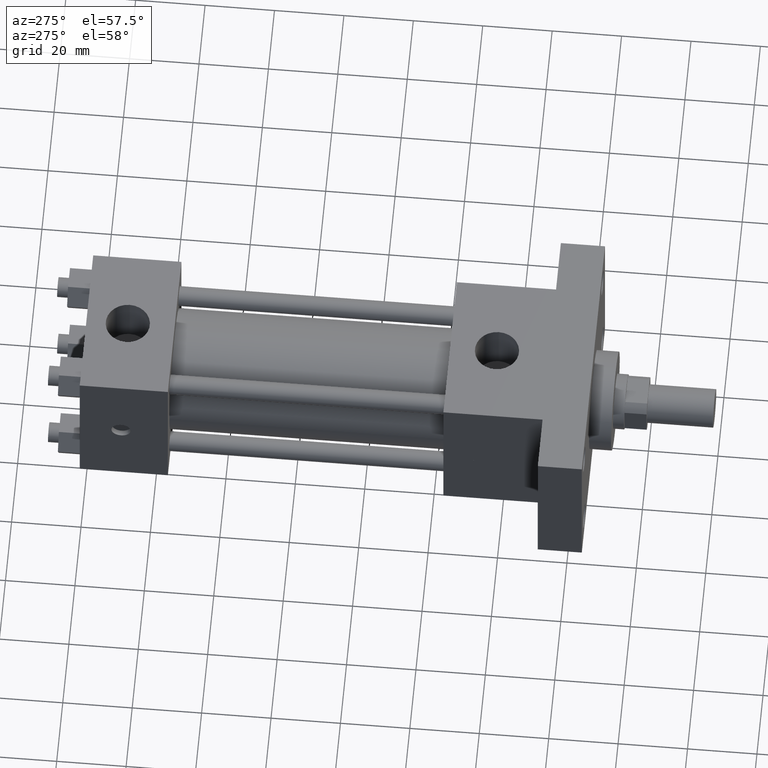
[diagram: clean part render]
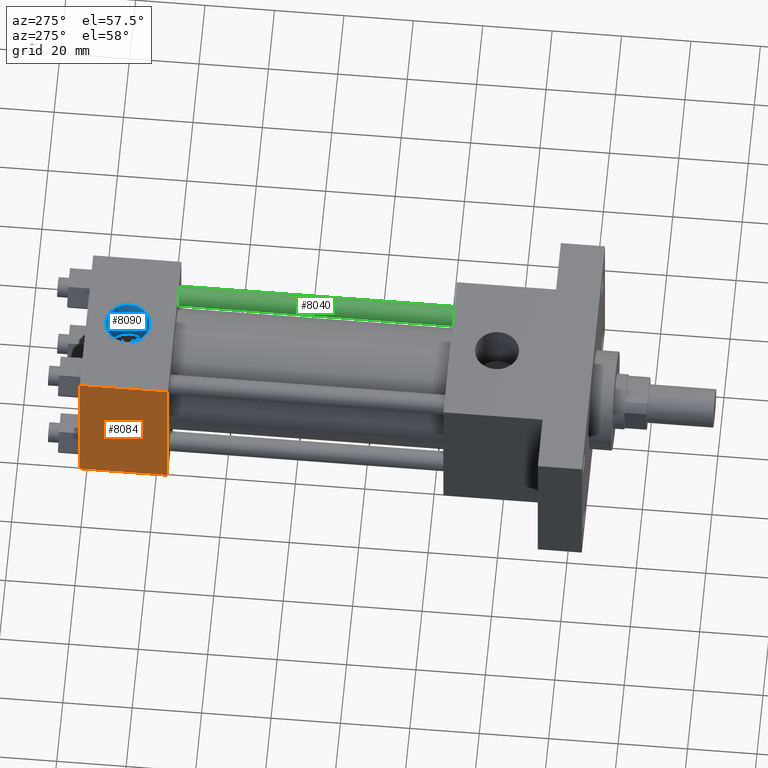
[diagram: same view with three faces highlighted in distinct colors, each labeled with its STEP entity id]
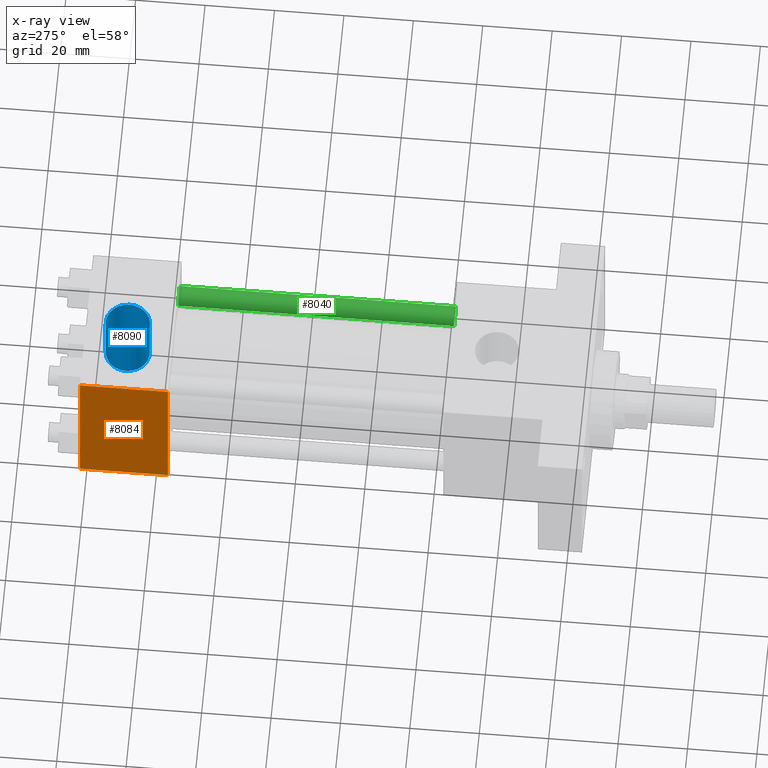
[diagram: x-ray of the same camera — body ghosted, the three highlighted faces saturated]
A machine part, auxiliary view with three faces highlighted in distinct colors.
The next image is the same camera in x-ray (body ghosted, the three faces saturated) — at least one of them is partly hidden behind the body in this view.
Their STEP definitions:

[orange] entity #8084 — the highlighted planar face has unit normal (-1, 0, 0).
#2244=VERTEX_POINT('',#2246);
#2246=CARTESIAN_POINT('',(-2.222500000E+001,1.619250000E+002,-2.222500000E+001));
#2248=EDGE_CURVE('',#2253,#2244,#2249,.T.);
#2249=LINE('',#2250,#2251);
#2250=CARTESIAN_POINT('',(-2.222500000E+001,1.619250000E+002,2.222500000E+001));
#2251=VECTOR('',#2252,1.0E+000);
#2252=DIRECTION('',(0.0E+000,0.0E+000,-1.0E+000));
#2253=VERTEX_POINT('',#2254);
#2254=CARTESIAN_POINT('',(-2.222500000E+001,1.619250000E+002,2.222500000E+001));
#2417=VERTEX_POINT('',#2419);
#2419=CARTESIAN_POINT('',(-2.222500000E+001,1.365250000E+002,-2.222500000E+001));
#2433=VERTEX_POINT('',#2434);
#2434=CARTESIAN_POINT('',(-2.222500000E+001,1.365250000E+002,2.222500000E+001));
#2435=EDGE_CURVE('',#2433,#2417,#2436,.T.);
#2436=LINE('',#2437,#2438);
#2437=CARTESIAN_POINT('',(-2.222500000E+001,1.365250000E+002,2.222500000E+001));
#2438=VECTOR('',#2439,1.0E+000);
#2439=DIRECTION('',(0.0E+000,0.0E+000,-1.0E+000));
#2462=EDGE_CURVE('',#2244,#2417,#2463,.T.);
#2463=LINE('',#2464,#2465);
#2464=CARTESIAN_POINT('',(-2.222500000E+001,1.619250000E+002,-2.222500000E+001));
#2465=VECTOR('',#2466,1.0E+000);
#2466=DIRECTION('',(0.0E+000,-1.0E+000,0.0E+000));
#2499=EDGE_CURVE('',#2253,#2433,#2500,.T.);
#2500=LINE('',#2501,#2502);
#2501=CARTESIAN_POINT('',(-2.222500000E+001,1.619250000E+002,2.222500000E+001));
#2502=VECTOR('',#2503,1.0E+000);
#2503=DIRECTION('',(0.0E+000,-1.0E+000,0.0E+000));
#2518=FACE_OUTER_BOUND('',#2520,.T.);
#2519=FACE_BOUND('',#2521,.T.);
#2520=EDGE_LOOP('',(#2522,#2523,#2524,#2525));
#2521=EDGE_LOOP('',(#2526));
#2522=ORIENTED_EDGE('',*,*,#2435,.F.);
#2523=ORIENTED_EDGE('',*,*,#2499,.F.);
#2524=ORIENTED_EDGE('',*,*,#2248,.T.);
#2525=ORIENTED_EDGE('',*,*,#2462,.T.);
#2526=ORIENTED_EDGE('',*,*,#2527,.T.);
#2527=EDGE_CURVE('',#2533,#2533,#2528,.T.);
#2528=CIRCLE('',#2529,2.778125000E+000);
#2529=AXIS2_PLACEMENT_3D('',#2530,#2531,#2532);
#2530=CARTESIAN_POINT('',(-2.222500000E+001,1.500187500E+002,0.000000000E+000));
#2531=DIRECTION('',(1.0E+000,0.0E+000,0.0E+000));
#2532=DIRECTION('',(0.0E+000,-1.0E+000,0.0E+000));
#2533=VERTEX_POINT('',#2534);
#2534=CARTESIAN_POINT('',(-2.222500000E+001,1.472406250E+002,0.000000000E+000));
#2535=PLANE('',#2536);
#2536=AXIS2_PLACEMENT_3D('',#2537,#2538,#2539);
#2537=CARTESIAN_POINT('',(-2.222500000E+001,1.619250000E+002,2.222500000E+001));
#2538=DIRECTION('',(-1.0E+000,0.0E+000,0.0E+000));
#2539=DIRECTION('',(0.0E+000,0.0E+000,1.0E+000));
#8084=ADVANCED_FACE('',(#2518,#2519),#2535,.T.);

[blue] entity #8090 — the highlighted cylindrical surface (bore or boss wall) has radius 6.35 mm, axis along (0, 0, 1).
#2505=EDGE_CURVE('',#2511,#2511,#2506,.T.);
#2506=CIRCLE('',#2507,6.350000000E+000);
#2507=AXIS2_PLACEMENT_3D('',#2508,#2509,#2510);
#2508=CARTESIAN_POINT('',(0.000000000E+000,1.500187500E+002,2.222500000E+001));
#2509=DIRECTION('',(0.0E+000,0.0E+000,-1.0E+000));
#2510=DIRECTION('',(1.0E+000,0.0E+000,0.0E+000));
#2511=VERTEX_POINT('',#2512);
#2512=CARTESIAN_POINT('',(6.350000000E+000,1.500187500E+002,2.222500000E+001));
#2616=FACE_OUTER_BOUND('',#2618,.T.);
#2617=FACE_BOUND('',#2619,.T.);
#2618=EDGE_LOOP('',(#2620));
#2619=EDGE_LOOP('',(#2629));
#2620=ORIENTED_EDGE('',*,*,#2621,.T.);
#2621=EDGE_CURVE('',#2627,#2627,#2622,.T.);
#2622=CIRCLE('',#2623,6.350000000E+000);
#2623=AXIS2_PLACEMENT_3D('',#2624,#2625,#2626);
#2624=CARTESIAN_POINT('',(0.000000000E+000,1.500187500E+002,6.756400000E+000));
#2625=DIRECTION('',(0.0E+000,0.0E+000,-1.0E+000));
#2626=DIRECTION('',(1.0E+000,0.0E+000,0.0E+000));
#2627=VERTEX_POINT('',#2628);
#2628=CARTESIAN_POINT('',(6.350000000E+000,1.500187500E+002,6.756400000E+000));
#2629=ORIENTED_EDGE('',*,*,#2505,.F.);
#2630=CYLINDRICAL_SURFACE('',#2631,6.350000000E+000);
#2631=AXIS2_PLACEMENT_3D('',#2632,#2633,#2634);
#2632=CARTESIAN_POINT('',(0.000000000E+000,1.500187500E+002,6.756400000E+000));
#2633=DIRECTION('',(0.0E+000,0.0E+000,1.0E+000));
#2634=DIRECTION('',(1.0E+000,0.0E+000,0.0E+000));
#8090=ADVANCED_FACE('',(#2616,#2617),#2630,.F.);

[green] entity #8040 — the highlighted cylindrical surface (bore or boss wall) has radius 2.8575 mm, axis along (0, 1, 0).
#889=EDGE_CURVE('',#895,#895,#890,.T.);
#890=CIRCLE('',#891,2.857500000E+000);
#891=AXIS2_PLACEMENT_3D('',#892,#893,#894);
#892=CARTESIAN_POINT('',(1.511300000E+001,5.715000000E+001,1.511300000E+001));
#893=DIRECTION('',(0.0E+000,-1.0E+000,0.0E+000));
#894=DIRECTION('',(-1.0E+000,0.0E+000,0.0E+000));
#895=VERTEX_POINT('',#896);
#896=CARTESIAN_POINT('',(1.225550000E+001,5.715000000E+001,1.511300000E+001));
#1097=FACE_OUTER_BOUND('',#1099,.T.);
#1098=FACE_BOUND('',#1100,.T.);
#1099=EDGE_LOOP('',(#1101));
#1100=EDGE_LOOP('',(#1102));
#1101=ORIENTED_EDGE('',*,*,#889,.F.);
#1102=ORIENTED_EDGE('',*,*,#1149,.T.);
#1103=CYLINDRICAL_SURFACE('',#1104,2.857500000E+000);
#1104=AXIS2_PLACEMENT_3D('',#1105,#1106,#1107);
#1105=CARTESIAN_POINT('',(1.511300000E+001,5.715000000E+001,1.511300000E+001));
#1106=DIRECTION('',(0.0E+000,1.0E+000,0.0E+000));
#1107=DIRECTION('',(0.0E+000,0.0E+000,-1.0E+000));
#1149=EDGE_CURVE('',#1155,#1155,#1150,.T.);
#1150=CIRCLE('',#1151,2.857500000E+000);
#1151=AXIS2_PLACEMENT_3D('',#1152,#1153,#1154);
#1152=CARTESIAN_POINT('',(1.511300000E+001,1.365250000E+002,1.511300000E+001));
#1153=DIRECTION('',(0.0E+000,-1.0E+000,0.0E+000));
#1154=DIRECTION('',(-1.0E+000,0.0E+000,0.0E+000));
#1155=VERTEX_POINT('',#1156);
#1156=CARTESIAN_POINT('',(1.225550000E+001,1.365250000E+002,1.511300000E+001));
#8040=ADVANCED_FACE('',(#1097,#1098),#1103,.T.);